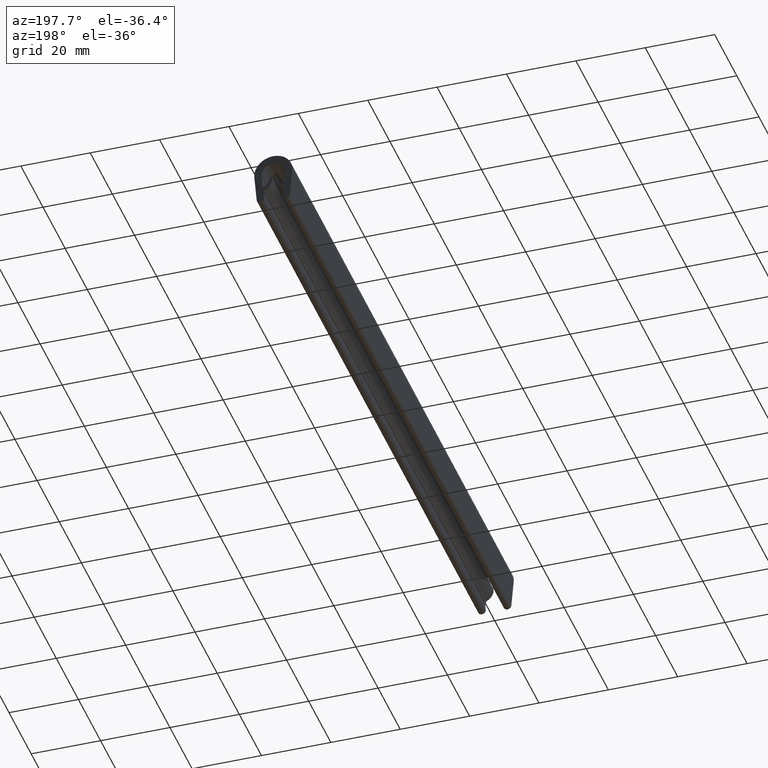
[diagram: clean part render]
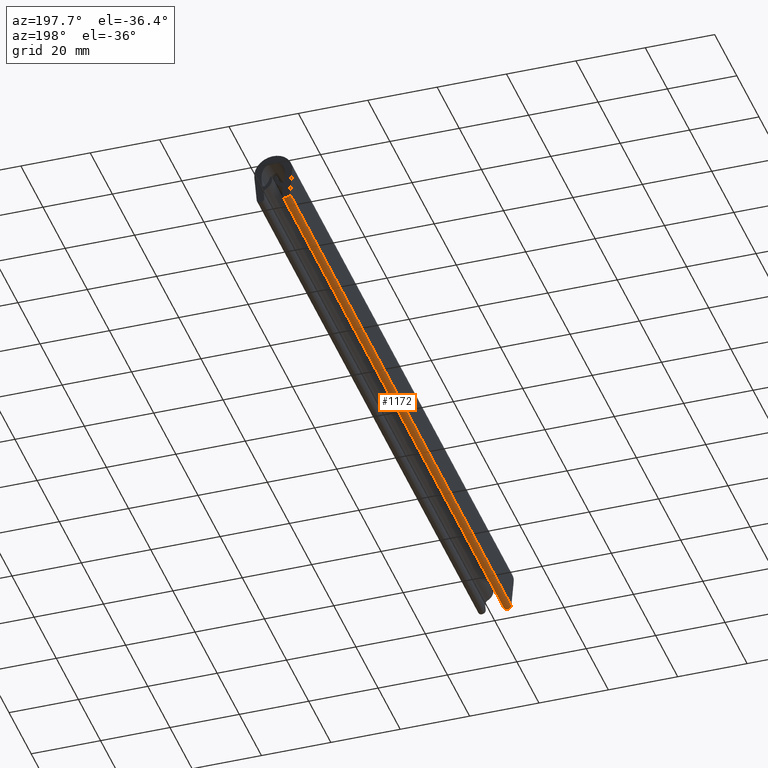
[diagram: same view with one face highlighted and labeled with its STEP entity id]
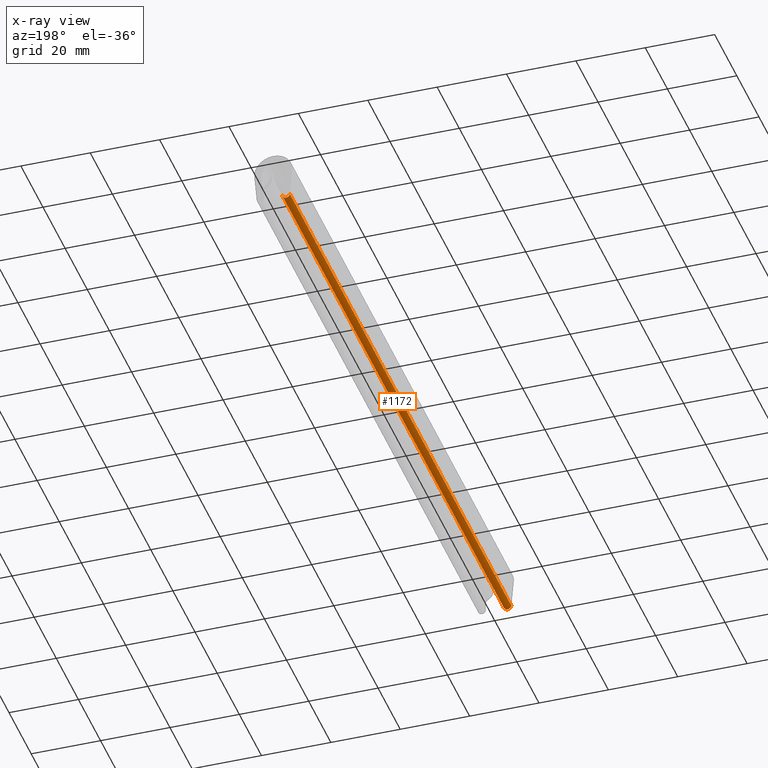
[diagram: x-ray of the same camera — body ghosted, the highlighted face saturated]
A machine part, auxiliary view. The second image highlights one B-rep face of the part: STEP entity #1172.
The next image is the same camera in x-ray: the body ghosted, the highlighted face saturated — about 0% of this face is hidden behind the body in this view.
In plain terms, the highlighted face is a freeform B-spline surface patch.
Its self-contained STEP definition (entity closure, byte-faithful):
#536=CARTESIAN_POINT('',(-2.591211016860155,0.0,-13.805714336452899));
#537=VERTEX_POINT('',#536);
#798=CARTESIAN_POINT('',(-4.782680216882060,0.0,-13.994669246972119));
#799=VERTEX_POINT('',#798);
#805=CARTESIAN_POINT('',(-4.782680216882060,0.0,-13.994669246972119));
#806=CARTESIAN_POINT('',(-4.770444047699736,0.0,-14.138123899909409));
#807=CARTESIAN_POINT('',(-4.683415931256072,0.0,-14.437627425329930));
#808=CARTESIAN_POINT('',(-4.386745201300406,0.0,-14.790346683084691));
#809=CARTESIAN_POINT('',(-3.957957247732528,0.0,-14.999518286388231));
#810=CARTESIAN_POINT('',(-3.552599327280292,0.0,-15.014449237820649));
#811=CARTESIAN_POINT('',(-3.206934220006890,0.0,-14.904620972663730));
#812=CARTESIAN_POINT('',(-2.917167319859829,0.0,-14.716230475209191));
#813=CARTESIAN_POINT('',(-2.639347873248157,0.0,-14.351300735034840));
#814=CARTESIAN_POINT('',(-2.573718586088523,0.0,-14.002982395746310));
#815=CARTESIAN_POINT('',(-2.591211016860155,0.0,-13.805714336452899));
#816=B_SPLINE_CURVE_WITH_KNOTS('',3,(#805,#806,#807,#808,#809,#810,#811,#812,#813,#814,#815),.UNSPECIFIED.,.F.,.U.,(4,1,1,1,1,1,1,1,4),(0.000001096678026,0.431933047137711,0.917869968211875,1.349734732303590,1.835745205402203,2.105752221511214,2.429597600792849,2.861573511921573,3.455485848664693),.UNSPECIFIED.);
#817=EDGE_CURVE('',#799,#537,#816,.T.);
#840=CARTESIAN_POINT('',(-2.591211016860155,200.0,-13.805714336452899));
#841=VERTEX_POINT('',#840);
#849=CARTESIAN_POINT('',(-4.782680216882060,200.0,-13.994669246972119));
#850=VERTEX_POINT('',#849);
#851=CARTESIAN_POINT('',(-4.782680216882060,200.0,-13.994669246972119));
#852=CARTESIAN_POINT('',(-4.773439772726107,199.999999999999890,-14.102233141267870));
#853=CARTESIAN_POINT('',(-4.718746720599242,200.000000000000110,-14.332326572535690));
#854=CARTESIAN_POINT('',(-4.517615959729437,200.0,-14.658900977747390));
#855=CARTESIAN_POINT('',(-4.167191452417352,200.000000000000110,-14.925558716518170));
#856=CARTESIAN_POINT('',(-3.700721300503659,199.999999999999890,-15.036398253000110));
#857=CARTESIAN_POINT('',(-3.267876286410025,200.000000000000110,-14.944486106799269));
#858=CARTESIAN_POINT('',(-2.917176920197027,199.999999999999600,-14.716209936171991));
#859=CARTESIAN_POINT('',(-2.639347873213580,200.000000000000310,-14.351300735020070));
#860=CARTESIAN_POINT('',(-2.573718586100530,200.000000000000310,-14.002982395751451));
#861=CARTESIAN_POINT('',(-2.591211016860155,200.0,-13.805714336452899));
#862=B_SPLINE_CURVE_WITH_KNOTS('',3,(#851,#852,#853,#854,#855,#856,#857,#858,#859,#860,#861),.UNSPECIFIED.,.F.,.U.,(4,1,1,1,1,1,1,1,4),(0.000001096678026,0.323916623820466,0.701922854268387,1.133915114342111,1.619741748431437,2.105752221511214,2.429597600792849,2.861573511921573,3.455485848664693),.UNSPECIFIED.);
#863=EDGE_CURVE('',#850,#841,#862,.T.);
#1140=CARTESIAN_POINT('',(-2.596375293796260,205.0,-13.758009021990899));
#1141=CARTESIAN_POINT('',(-2.596375293796260,-5.125000000000000,-13.758009021990899));
#1142=CARTESIAN_POINT('',(-2.446537889058679,205.000000000000140,-14.907229661483814));
#1143=CARTESIAN_POINT('',(-2.446537889058679,-5.125000000000001,-14.907229661483814));
#1144=CARTESIAN_POINT('',(-3.602025445463747,205.0,-14.996716158163750));
#1145=CARTESIAN_POINT('',(-3.602025445463747,-5.125000000000000,-14.996716158163750));
#1146=CARTESIAN_POINT('',(-4.757513001868817,205.000000000000140,-15.086202654843696));
#1147=CARTESIAN_POINT('',(-4.757513001868817,-5.125000000000001,-15.086202654843696));
#1148=CARTESIAN_POINT('',(-4.786403314223836,205.0,-13.927615292601621));
#1149=CARTESIAN_POINT('',(-4.786403314223836,-5.125000000000000,-13.927615292601621));
#1157=(BOUNDED_SURFACE()B_SPLINE_SURFACE(1,2,((#1140,#1142,#1144,#1146,#1148),(#1141,#1143,#1145,#1147,#1149)),.UNSPECIFIED.,.F.,.F.,.U.)B_SPLINE_SURFACE_WITH_KNOTS((2,2),(3,2,3),(0.0,210.125000000000000),(0.0,1.0,2.0),.UNSPECIFIED.)GEOMETRIC_REPRESENTATION_ITEM()RATIONAL_B_SPLINE_SURFACE(((1.0,0.688354575693754,1.0,0.688354575693754,1.0),(1.0,0.688354575693754,1.0,0.688354575693754,1.0)))REPRESENTATION_ITEM('')SURFACE());
#1158=ORIENTED_EDGE('',*,*,#817,.F.);
#1159=CARTESIAN_POINT('',(-4.782680216882060,200.0,-13.994669246972119));
#1160=CARTESIAN_POINT('',(-4.782680216882060,0.0,-13.994669246972119));
#1161=QUASI_UNIFORM_CURVE('',1,(#1159,#1160),.UNSPECIFIED.,.F.,.U.);
#1162=EDGE_CURVE('',#850,#799,#1161,.T.);
#1163=ORIENTED_EDGE('',*,*,#1162,.F.);
#1164=ORIENTED_EDGE('',*,*,#863,.T.);
#1165=CARTESIAN_POINT('',(-2.591211016860155,200.0,-13.805714336452899));
#1166=CARTESIAN_POINT('',(-2.591211016860155,0.0,-13.805714336452899));
#1167=QUASI_UNIFORM_CURVE('',1,(#1165,#1166),.UNSPECIFIED.,.F.,.U.);
#1168=EDGE_CURVE('',#841,#537,#1167,.T.);
#1169=ORIENTED_EDGE('',*,*,#1168,.T.);
#1170=EDGE_LOOP('',(#1158,#1163,#1164,#1169));
#1171=FACE_OUTER_BOUND('',#1170,.T.);
#1172=ADVANCED_FACE('',(#1171),#1157,.T.);